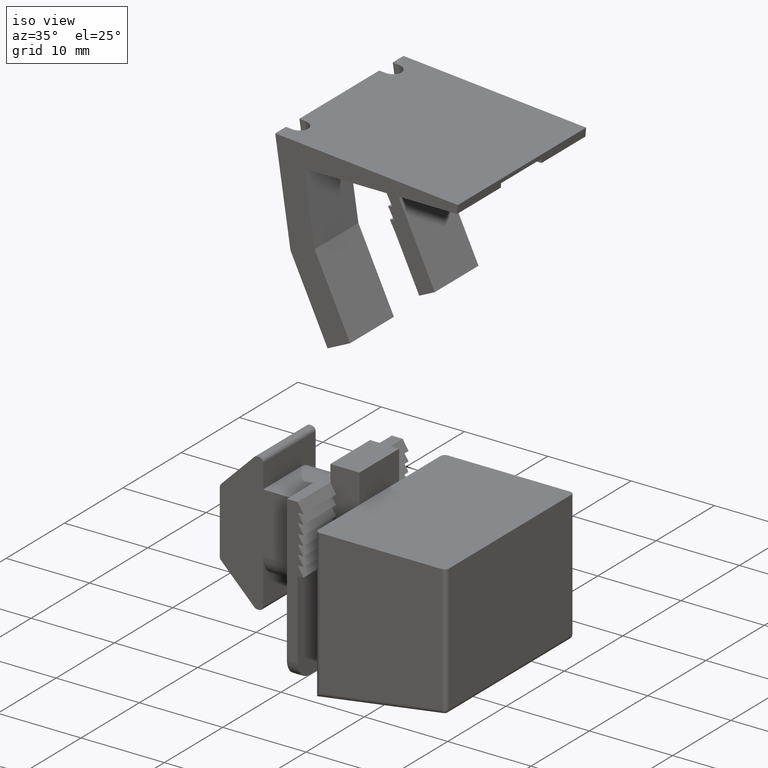
[diagram: clean part render]
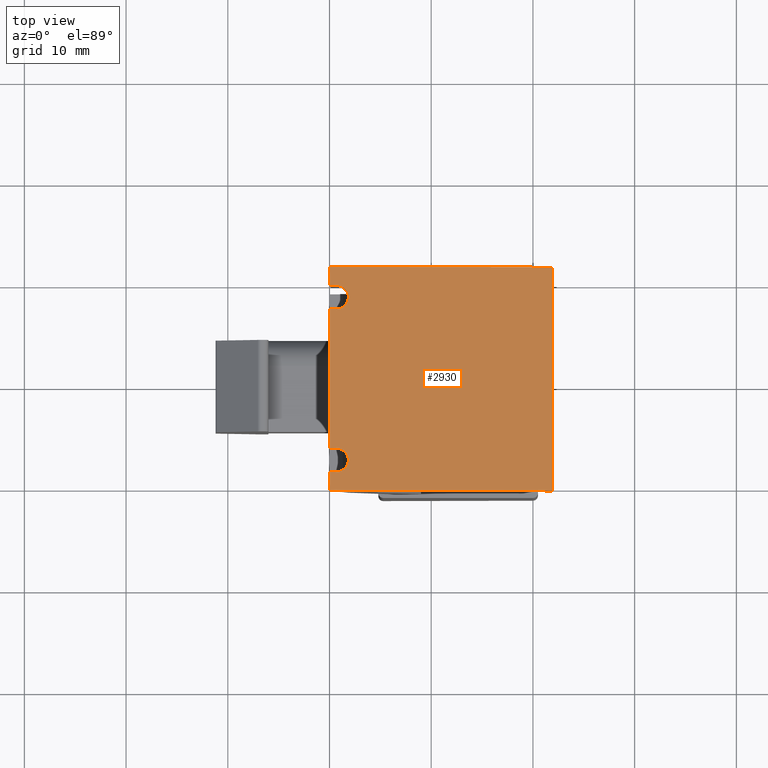
[diagram: tour spotlight — one face highlighted and labeled with its STEP entity id]
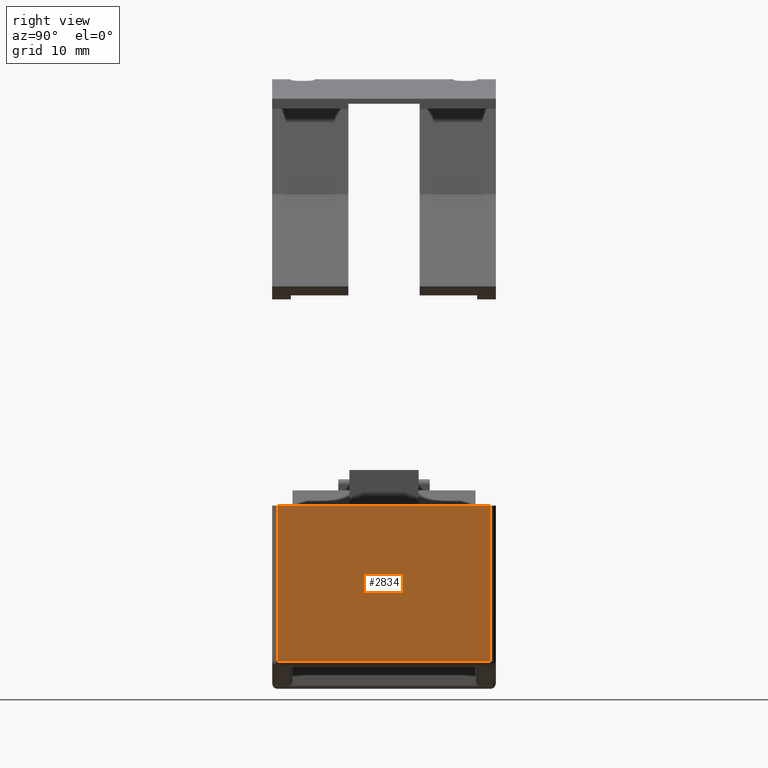
[diagram: tour spotlight — one face highlighted and labeled with its STEP entity id]
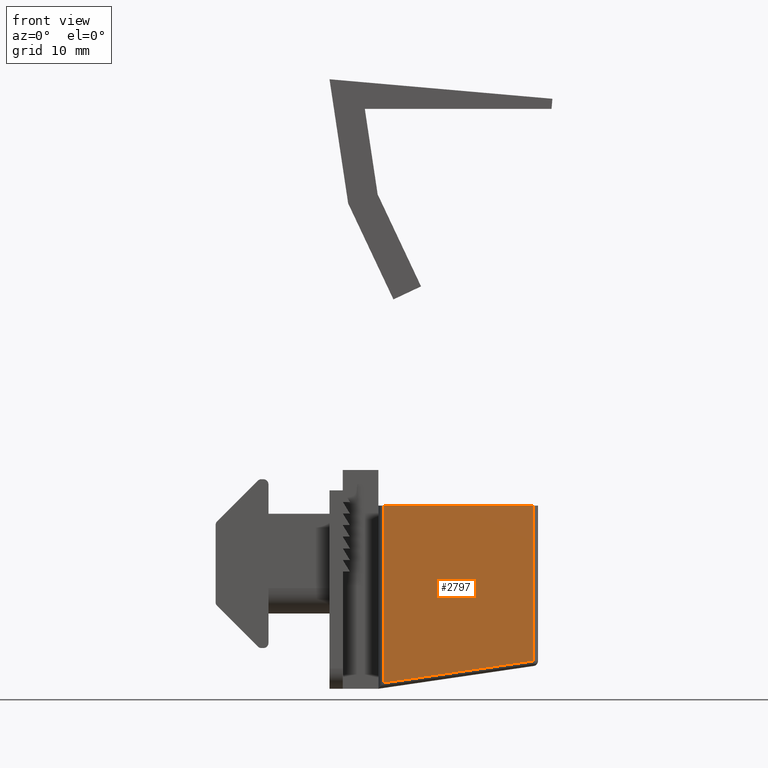
[diagram: tour spotlight — one face highlighted and labeled with its STEP entity id]
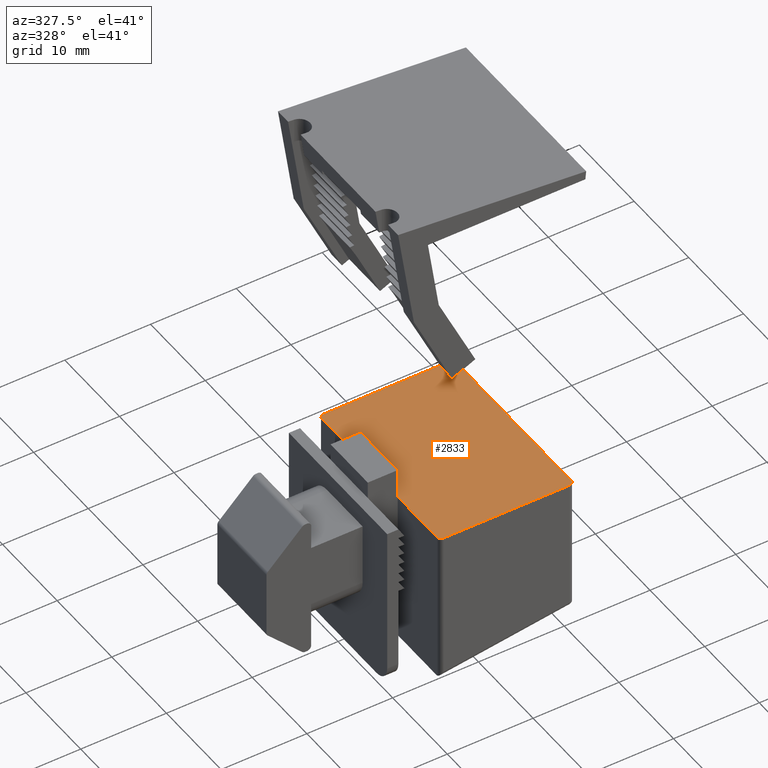
[diagram: tour spotlight — one face highlighted and labeled with its STEP entity id]
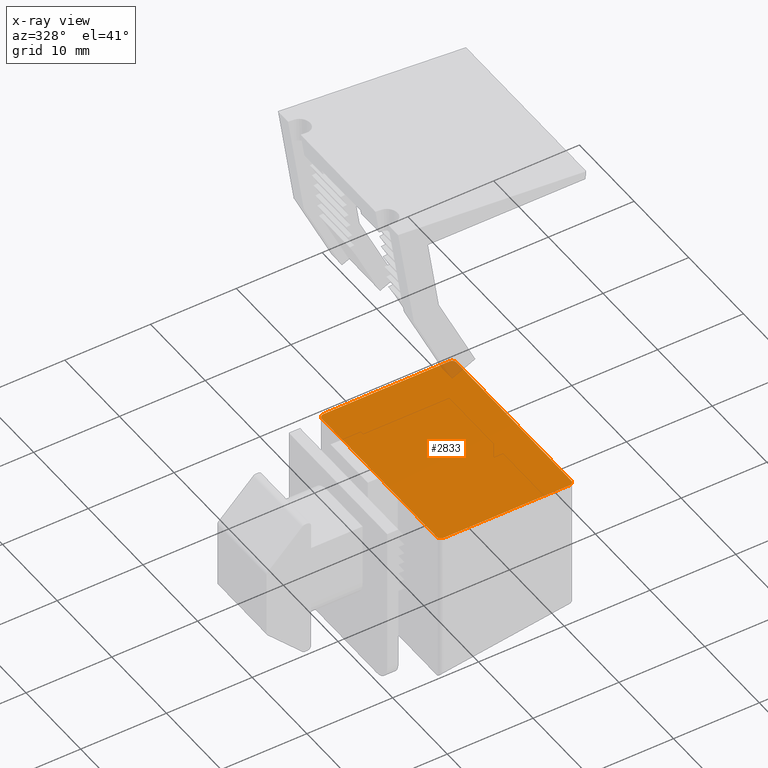
[diagram: x-ray of the same camera — body ghosted, this tour face saturated]
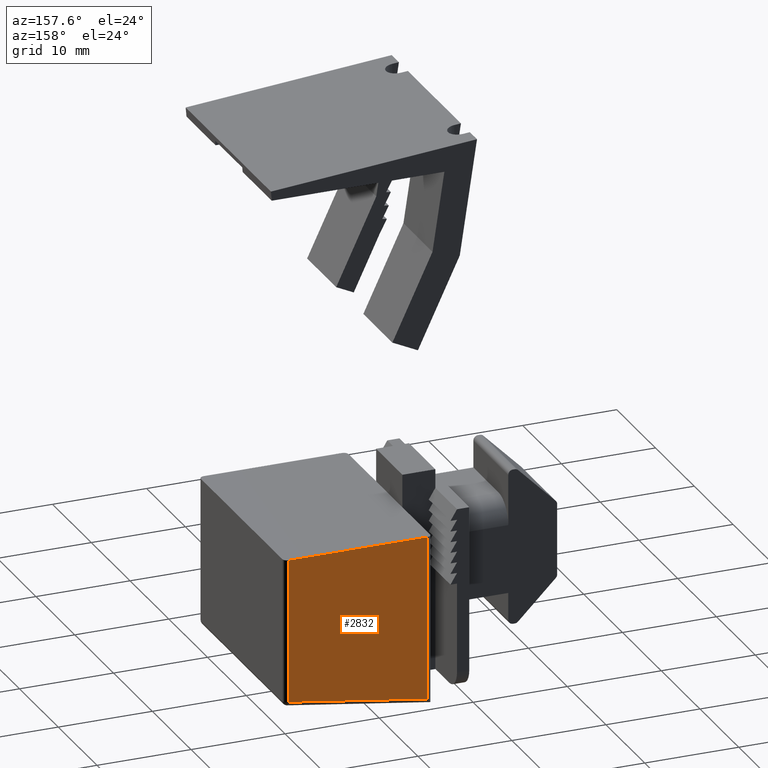
[diagram: tour spotlight — one face highlighted and labeled with its STEP entity id]
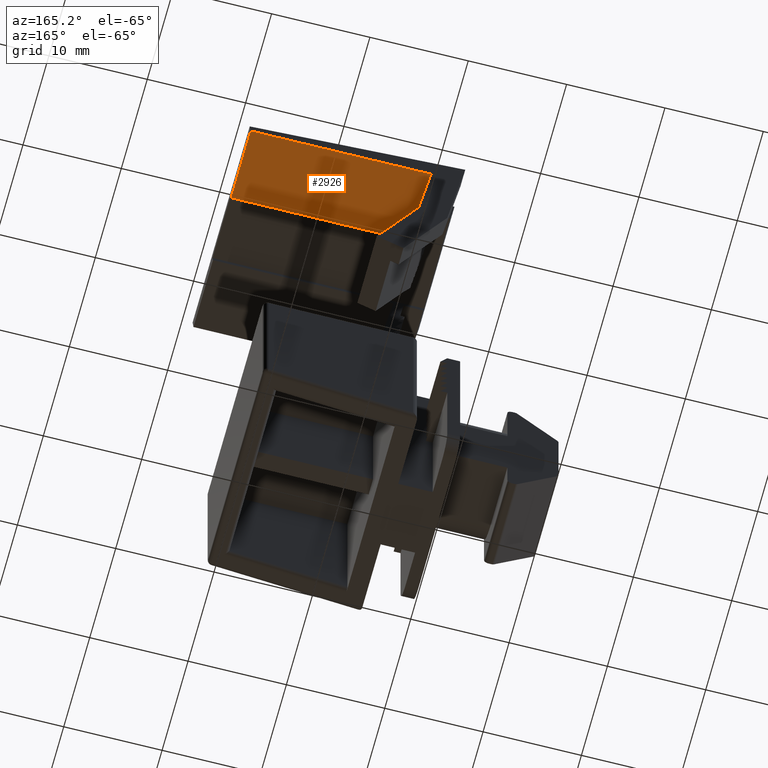
[diagram: tour spotlight — one face highlighted and labeled with its STEP entity id]
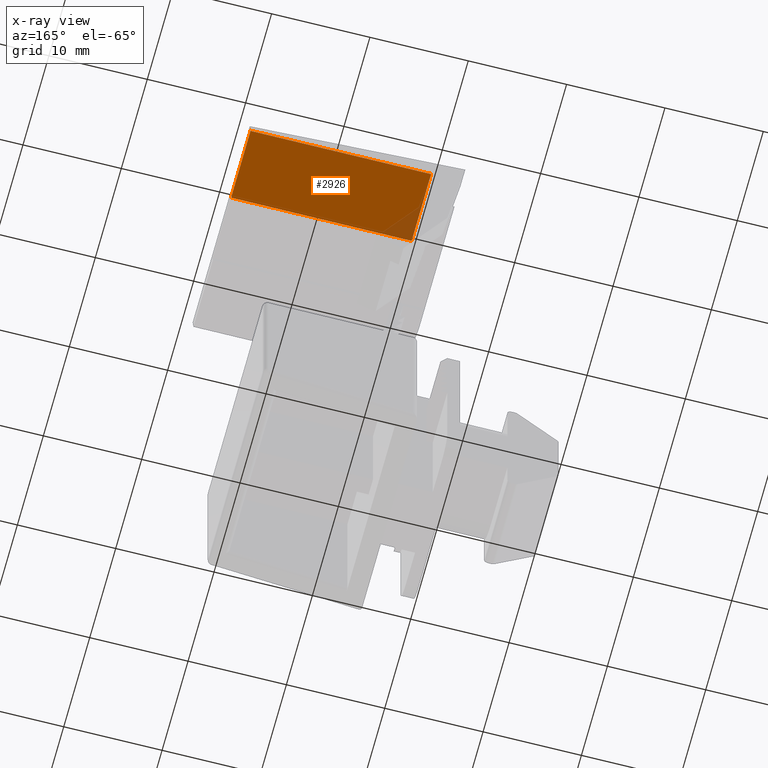
[diagram: x-ray of the same camera — body ghosted, this tour face saturated]
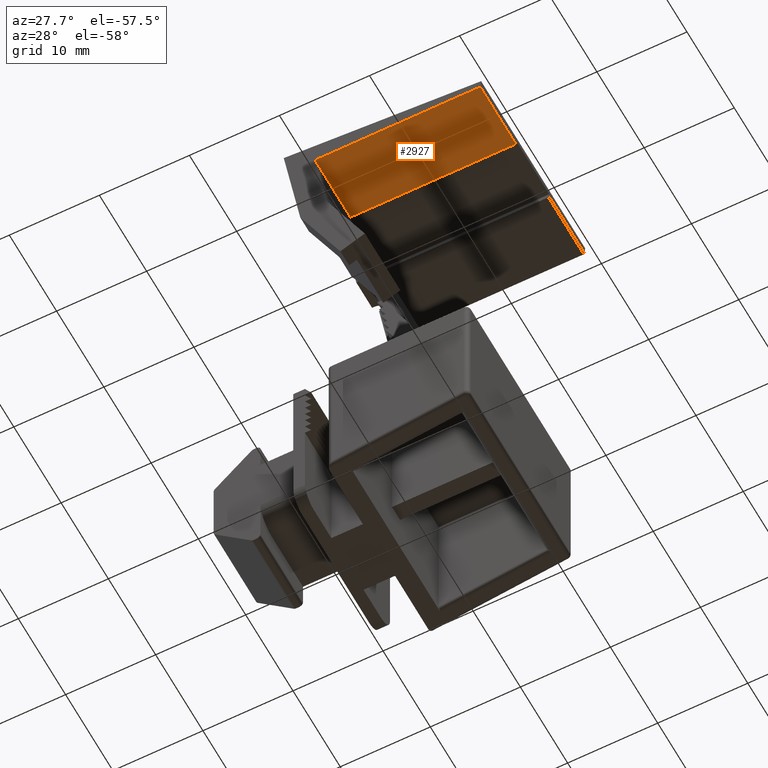
[diagram: tour spotlight — one face highlighted and labeled with its STEP entity id]
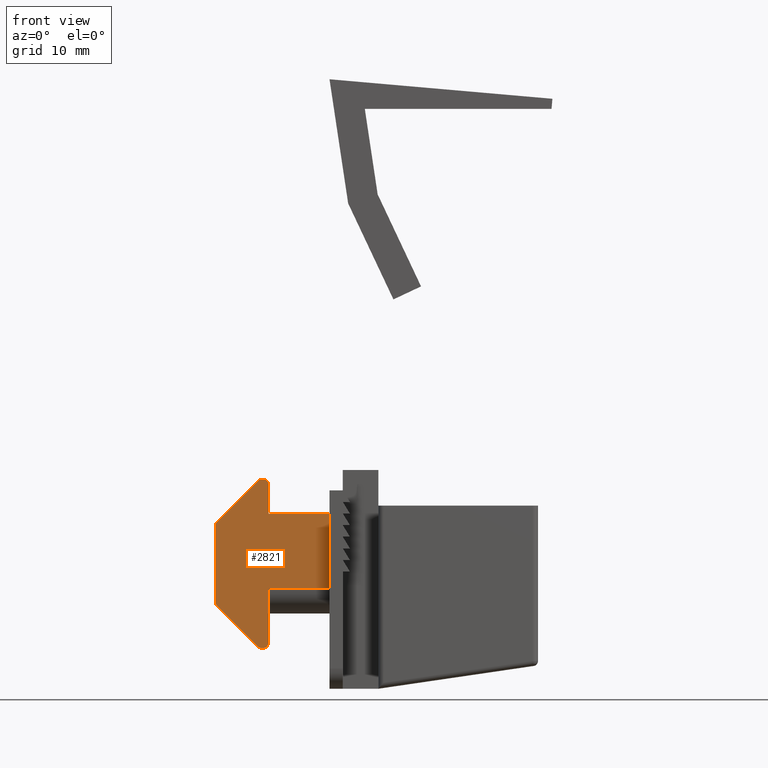
[diagram: tour spotlight — one face highlighted and labeled with its STEP entity id]
A machine part: a face-by-face anatomy tour. The part has 149 B-rep faces; the first image is the clean iso view, then the 8 largest visible faces are spotlighted one at a time (largest first), each with its STEP entity span.

Face 1 — top view, entity #2930. In plain terms, the highlighted planar face has unit normal (0.0872, 0, 0.9962).
Definition (entity closure, byte-faithful):
#154=PLANE('',#3125);
#303=FACE_OUTER_BOUND('',#454,.T.);
#454=EDGE_LOOP('',(#2741,#2742,#2743,#2744,#2745,#2746,#2747,#2748,#2749,
#2750,#2751,#2752));
#496=ELLIPSE('',#3065,1.15439281317485,1.15);
#497=ELLIPSE('',#3068,1.15439281317485,1.15);
#704=LINE('',#4391,#1077);
#709=LINE('',#4411,#1082);
#716=LINE('',#4426,#1089);
#719=LINE('',#4431,#1092);
#806=LINE('',#4603,#1179);
#828=LINE('',#4648,#1201);
#843=LINE('',#4677,#1216);
#867=LINE('',#4726,#1240);
#869=LINE('',#4729,#1242);
#870=LINE('',#4731,#1243);
#1077=VECTOR('',#3596,0.702673886280343);
#1082=VECTOR('',#3615,0.702673886280343);
#1089=VECTOR('',#3626,1.85);
#1092=VECTOR('',#3631,13.7);
#1179=VECTOR('',#3766,0.702673886280343);
#1201=VECTOR('',#3810,0.702673886280343);
#1216=VECTOR('',#3833,1.85);
#1240=VECTOR('',#3879,22.);
#1242=VECTOR('',#3883,22.);
#1243=VECTOR('',#3886,22.);
#1401=VERTEX_POINT('',#4385);
#1403=VERTEX_POINT('',#4389);
#1404=VERTEX_POINT('',#4393);
#1406=VERTEX_POINT('',#4399);
#1407=VERTEX_POINT('',#4400);
#1410=VERTEX_POINT('',#4408);
#1416=VERTEX_POINT('',#4423);
#1417=VERTEX_POINT('',#4425);
#1491=VERTEX_POINT('',#4646);
#1501=VERTEX_POINT('',#4675);
#1514=VERTEX_POINT('',#4723);
#1515=VERTEX_POINT('',#4725);
#1760=EDGE_CURVE('',#1401,#1403,#704,.T.);
#1761=EDGE_CURVE('',#1403,#1404,#496,.T.);
#1764=EDGE_CURVE('',#1406,#1407,#497,.T.);
#1769=EDGE_CURVE('',#1407,#1410,#709,.T.);
#1776=EDGE_CURVE('',#1417,#1416,#716,.T.);
#1779=EDGE_CURVE('',#1410,#1401,#719,.T.);
#1866=EDGE_CURVE('',#1416,#1406,#806,.T.);
#1888=EDGE_CURVE('',#1404,#1491,#828,.T.);
#1903=EDGE_CURVE('',#1491,#1501,#843,.T.);
#1927=EDGE_CURVE('',#1515,#1514,#867,.T.);
#1929=EDGE_CURVE('',#1417,#1514,#869,.T.);
#1930=EDGE_CURVE('',#1515,#1501,#870,.T.);
#2741=ORIENTED_EDGE('',*,*,#1888,.T.);
#2742=ORIENTED_EDGE('',*,*,#1903,.T.);
#2743=ORIENTED_EDGE('',*,*,#1930,.F.);
#2744=ORIENTED_EDGE('',*,*,#1927,.T.);
#2745=ORIENTED_EDGE('',*,*,#1929,.F.);
#2746=ORIENTED_EDGE('',*,*,#1776,.T.);
#2747=ORIENTED_EDGE('',*,*,#1866,.T.);
#2748=ORIENTED_EDGE('',*,*,#1764,.T.);
#2749=ORIENTED_EDGE('',*,*,#1769,.T.);
#2750=ORIENTED_EDGE('',*,*,#1779,.T.);
#2751=ORIENTED_EDGE('',*,*,#1760,.T.);
#2752=ORIENTED_EDGE('',*,*,#1761,.T.);
#2930=ADVANCED_FACE('',(#303),#154,.T.);
#3065=AXIS2_PLACEMENT_3D('',#4394,#3599,#3600);
#3068=AXIS2_PLACEMENT_3D('',#4401,#3606,#3607);
#3125=AXIS2_PLACEMENT_3D('',#4730,#3884,#3885);
#3596=DIRECTION('',(0.996194698091746,-0.0871557427476581,0.));
#3599=DIRECTION('center_axis',(-0.0871557427476581,-0.996194698091746,0.));
#3600=DIRECTION('ref_axis',(-0.996194698091746,0.0871557427476581,0.));
#3606=DIRECTION('center_axis',(-0.0871557427476581,-0.996194698091746,0.));
#3607=DIRECTION('ref_axis',(-0.996194698091746,0.0871557427476581,0.));
#3615=DIRECTION('',(-0.996194698091746,0.0871557427476581,0.));
#3626=DIRECTION('',(0.,0.,1.));
#3631=DIRECTION('',(0.,0.,1.));
#3766=DIRECTION('',(0.996194698091746,-0.0871557427476581,0.));
#3810=DIRECTION('',(-0.996194698091746,0.0871557427476581,0.));
#3833=DIRECTION('',(0.,0.,1.));
#3879=DIRECTION('',(0.,0.,-1.));
#3883=DIRECTION('',(0.996194698091745,-0.0871557427476581,0.));
#3884=DIRECTION('center_axis',(0.0871557427476581,0.996194698091746,0.));
#3885=DIRECTION('ref_axis',(-0.996194698091746,0.0871557427476581,0.));
#3886=DIRECTION('',(-0.996194698091745,0.0871557427476581,0.));
#4385=CARTESIAN_POINT('',(-3.47158707592907,2.91362103854022,6.85));
#4389=CARTESIAN_POINT('',(-2.77158707592907,2.85237897407208,6.85));
#4391=CARTESIAN_POINT('',(7.96038220579591,1.91345332461269,6.85));
#4393=CARTESIAN_POINT('',(-2.77158707592907,2.85237897407208,9.15));
#4394=CARTESIAN_POINT('Origin',(-2.77158707592907,2.85237897407208,8.));
#4399=CARTESIAN_POINT('',(-2.77158707592907,2.85237897407208,-9.15));
#4400=CARTESIAN_POINT('',(-2.77158707592907,2.85237897407208,-6.85));
#4401=CARTESIAN_POINT('Origin',(-2.77158707592907,2.85237897407208,-8.));
#4408=CARTESIAN_POINT('',(-3.47158707592907,2.91362103854022,-6.85));
#4411=CARTESIAN_POINT('',(7.61304084901877,1.9438417557044,-6.85));
#4423=CARTESIAN_POINT('',(-3.47158707592907,2.91362103854022,-9.15));
#4425=CARTESIAN_POINT('',(-3.47158707592907,2.91362103854022,-11.));
#4426=CARTESIAN_POINT('',(-3.47158707592907,2.91362103854022,0.));
#4431=CARTESIAN_POINT('',(-3.47158707592907,2.91362103854022,0.));
#4603=CARTESIAN_POINT('',(7.96038220579591,1.91345332461269,-9.15));
#4646=CARTESIAN_POINT('',(-3.47158707592907,2.91362103854022,9.15));
#4648=CARTESIAN_POINT('',(7.61304084901877,1.9438417557044,9.15));
#4675=CARTESIAN_POINT('',(-3.47158707592907,2.91362103854022,11.));
#4677=CARTESIAN_POINT('',(-3.47158707592907,2.91362103854022,0.));
#4723=CARTESIAN_POINT('',(18.4446962820893,0.996194698091746,-11.));
#4725=CARTESIAN_POINT('',(18.4446962820893,0.996194698091746,11.));
#4726=CARTESIAN_POINT('',(18.4446962820893,0.996194698091746,0.));
#4729=CARTESIAN_POINT('',(-3.47158707592907,2.91362103854022,-11.));
#4730=CARTESIAN_POINT('Origin',(18.4446962820893,0.996194698091746,0.));
#4731=CARTESIAN_POINT('',(-3.47158707592907,2.91362103854022,11.));

Face 2 — right view, entity #2834. In plain terms, the highlighted planar face has unit normal (1, 0, 0).
Definition (entity closure, byte-faithful):
#60=PLANE('',#3024);
#207=FACE_OUTER_BOUND('',#357,.T.);
#357=EDGE_LOOP('',(#2191,#2192,#2193,#2194));
#511=LINE('',#3948,#884);
#515=LINE('',#3963,#888);
#518=LINE('',#3970,#891);
#602=LINE('',#4183,#975);
#884=VECTOR('',#3183,21.);
#888=VECTOR('',#3199,15.26791156036);
#891=VECTOR('',#3206,15.26791156036);
#975=VECTOR('',#3414,21.);
#1261=VERTEX_POINT('',#3938);
#1262=VERTEX_POINT('',#3942);
#1268=VERTEX_POINT('',#3961);
#1269=VERTEX_POINT('',#3966);
#1541=EDGE_CURVE('',#1262,#1261,#511,.T.);
#1548=EDGE_CURVE('',#1268,#1262,#515,.T.);
#1552=EDGE_CURVE('',#1261,#1269,#518,.T.);
#1658=EDGE_CURVE('',#1268,#1269,#602,.T.);
#2191=ORIENTED_EDGE('',*,*,#1548,.F.);
#2192=ORIENTED_EDGE('',*,*,#1658,.T.);
#2193=ORIENTED_EDGE('',*,*,#1552,.F.);
#2194=ORIENTED_EDGE('',*,*,#1541,.F.);
#2834=ADVANCED_FACE('',(#207),#60,.T.);
#3024=AXIS2_PLACEMENT_3D('',#4184,#3415,#3416);
#3183=DIRECTION('',(0.,1.,0.));
#3199=DIRECTION('',(0.,0.,1.));
#3206=DIRECTION('',(0.,0.,-1.));
#3414=DIRECTION('',(0.,1.,0.));
#3415=DIRECTION('center_axis',(1.,0.,0.));
#3416=DIRECTION('ref_axis',(0.,0.,-1.));
#3938=CARTESIAN_POINT('',(20.5,10.5,16.76791156036));
#3942=CARTESIAN_POINT('',(20.5,-10.5,16.76791156036));
#3948=CARTESIAN_POINT('',(20.5,0.,16.76791156036));
#3961=CARTESIAN_POINT('',(20.5,-10.5,1.5));
#3963=CARTESIAN_POINT('',(20.5,-10.5,13.5834471255872));
#3966=CARTESIAN_POINT('',(20.5,10.5,1.5));
#3970=CARTESIAN_POINT('',(20.5,10.5,13.5834471255872));
#4183=CARTESIAN_POINT('',(20.5,0.,1.5));
#4184=CARTESIAN_POINT('Origin',(20.5,0.,17.2));

Face 3 — front view, entity #2797. In plain terms, the highlighted planar face has unit normal (0, -1, 0).
Definition (entity closure, byte-faithful):
#33=PLANE('',#2967);
#170=FACE_OUTER_BOUND('',#320,.T.);
#320=EDGE_LOOP('',(#1993,#1994,#1995,#1996));
#517=LINE('',#3969,#890);
#519=LINE('',#3973,#892);
#520=LINE('',#3977,#893);
#524=LINE('',#3986,#897);
#890=VECTOR('',#3205,15.26791156036);
#892=VECTOR('',#3209,14.8569033101306);
#893=VECTOR('',#3214,17.4214147450733);
#897=VECTOR('',#3224,14.7);
#1260=VERTEX_POINT('',#3936);
#1270=VERTEX_POINT('',#3967);
#1271=VERTEX_POINT('',#3972);
#1272=VERTEX_POINT('',#3976);
#1551=EDGE_CURVE('',#1270,#1260,#517,.T.);
#1553=EDGE_CURVE('',#1260,#1271,#519,.T.);
#1555=EDGE_CURVE('',#1271,#1272,#520,.T.);
#1560=EDGE_CURVE('',#1270,#1272,#524,.T.);
#1993=ORIENTED_EDGE('',*,*,#1555,.F.);
#1994=ORIENTED_EDGE('',*,*,#1553,.F.);
#1995=ORIENTED_EDGE('',*,*,#1551,.F.);
#1996=ORIENTED_EDGE('',*,*,#1560,.T.);
#2797=ADVANCED_FACE('',(#170),#33,.T.);
#2967=AXIS2_PLACEMENT_3D('',#3985,#3222,#3223);
#3205=DIRECTION('',(0.,0.,1.));
#3209=DIRECTION('',(-0.989439030001384,0.,0.144949666815489));
#3214=DIRECTION('',(0.,0.,-1.));
#3222=DIRECTION('center_axis',(0.,1.,0.));
#3223=DIRECTION('ref_axis',(0.,0.,1.));
#3224=DIRECTION('',(-1.,0.,-3.53574211664063E-17));
#3936=CARTESIAN_POINT('',(20.,11.,16.76791156036));
#3967=CARTESIAN_POINT('',(20.,11.,1.5));
#3969=CARTESIAN_POINT('',(20.,11.,13.5834471255872));
#3972=CARTESIAN_POINT('',(5.3,11.,18.9214147450733));
#3973=CARTESIAN_POINT('',(9.11826371996784,11.,18.3620512701736));
#3976=CARTESIAN_POINT('',(5.3,11.,1.5));
#3977=CARTESIAN_POINT('',(5.3,11.,5.73344712558717));
#3985=CARTESIAN_POINT('Origin',(12.3733695377002,11.,9.96689425117433));
#3986=CARTESIAN_POINT('',(20.5,11.,1.5));

Face 4 — auxiliary view, entity #2833. An x-ray twin of the same camera follows (body ghosted, this face saturated) — the face is partly hidden behind the body. In plain terms, the highlighted planar face has unit normal (0, 0, 1).
Definition (entity closure, byte-faithful):
#59=PLANE('',#3023);
#206=FACE_OUTER_BOUND('',#356,.T.);
#356=EDGE_LOOP('',(#2181,#2182,#2183,#2184,#2185,#2186,#2187,#2188,#2189,
#2190));
#464=CIRCLE('',#2955,0.5);
#465=CIRCLE('',#2959,0.5);
#466=CIRCLE('',#2961,0.5);
#467=CIRCLE('',#2965,0.5);
#522=LINE('',#3983,#895);
#524=LINE('',#3986,#897);
#599=LINE('',#4178,#972);
#600=LINE('',#4180,#973);
#601=LINE('',#4182,#974);
#602=LINE('',#4183,#975);
#895=VECTOR('',#3220,7.1);
#897=VECTOR('',#3224,14.7);
#972=VECTOR('',#3407,7.1);
#973=VECTOR('',#3410,14.7);
#974=VECTOR('',#3413,6.8);
#975=VECTOR('',#3414,21.);
#1264=VERTEX_POINT('',#3950);
#1265=VERTEX_POINT('',#3952);
#1267=VERTEX_POINT('',#3960);
#1268=VERTEX_POINT('',#3961);
#1269=VERTEX_POINT('',#3966);
#1270=VERTEX_POINT('',#3967);
#1272=VERTEX_POINT('',#3976);
#1273=VERTEX_POINT('',#3978);
#1274=VERTEX_POINT('',#3982);
#1337=VERTEX_POINT('',#4176);
#1543=EDGE_CURVE('',#1264,#1265,#464,.T.);
#1547=EDGE_CURVE('',#1267,#1268,#465,.T.);
#1550=EDGE_CURVE('',#1269,#1270,#466,.T.);
#1556=EDGE_CURVE('',#1272,#1273,#467,.T.);
#1558=EDGE_CURVE('',#1274,#1273,#522,.T.);
#1560=EDGE_CURVE('',#1270,#1272,#524,.T.);
#1655=EDGE_CURVE('',#1264,#1337,#599,.T.);
#1656=EDGE_CURVE('',#1265,#1267,#600,.T.);
#1657=EDGE_CURVE('',#1274,#1337,#601,.T.);
#1658=EDGE_CURVE('',#1268,#1269,#602,.T.);
#2181=ORIENTED_EDGE('',*,*,#1543,.F.);
#2182=ORIENTED_EDGE('',*,*,#1655,.T.);
#2183=ORIENTED_EDGE('',*,*,#1657,.F.);
#2184=ORIENTED_EDGE('',*,*,#1558,.T.);
#2185=ORIENTED_EDGE('',*,*,#1556,.F.);
#2186=ORIENTED_EDGE('',*,*,#1560,.F.);
#2187=ORIENTED_EDGE('',*,*,#1550,.F.);
#2188=ORIENTED_EDGE('',*,*,#1658,.F.);
#2189=ORIENTED_EDGE('',*,*,#1547,.F.);
#2190=ORIENTED_EDGE('',*,*,#1656,.F.);
#2833=ADVANCED_FACE('',(#206),#59,.T.);
#2955=AXIS2_PLACEMENT_3D('',#3953,#3187,#3188);
#2959=AXIS2_PLACEMENT_3D('',#3962,#3197,#3198);
#2961=AXIS2_PLACEMENT_3D('',#3968,#3203,#3204);
#2965=AXIS2_PLACEMENT_3D('',#3979,#3215,#3216);
#3023=AXIS2_PLACEMENT_3D('',#4181,#3411,#3412);
#3187=DIRECTION('center_axis',(-3.53574211664063E-17,0.,1.));
#3188=DIRECTION('ref_axis',(-0.707106781186546,-0.707106781186549,0.));
#3197=DIRECTION('center_axis',(-3.53574211664063E-17,0.,1.));
#3198=DIRECTION('ref_axis',(0.707106781186548,-0.707106781186548,0.));
#3203=DIRECTION('center_axis',(-3.53574211664063E-17,0.,1.));
#3204=DIRECTION('ref_axis',(0.707106781186548,0.707106781186548,0.));
#3215=DIRECTION('center_axis',(-3.53574211664063E-17,0.,1.));
#3216=DIRECTION('ref_axis',(-0.707106781186546,0.707106781186549,0.));
#3220=DIRECTION('',(0.,1.,0.));
#3224=DIRECTION('',(-1.,0.,-3.53574211664063E-17));
#3407=DIRECTION('',(0.,1.,0.));
#3410=DIRECTION('',(1.,0.,3.53574211664063E-17));
#3411=DIRECTION('center_axis',(3.53574211664063E-17,0.,-1.));
#3412=DIRECTION('ref_axis',(-1.,0.,-4.44089209850063E-17));
#3413=DIRECTION('',(0.,-1.,0.));
#3414=DIRECTION('',(0.,1.,0.));
#3950=CARTESIAN_POINT('',(4.8,-10.5,1.5));
#3952=CARTESIAN_POINT('',(5.3,-11.,1.5));
#3953=CARTESIAN_POINT('Origin',(5.3,-10.5,1.5));
#3960=CARTESIAN_POINT('',(20.,-11.,1.5));
#3961=CARTESIAN_POINT('',(20.5,-10.5,1.5));
#3962=CARTESIAN_POINT('Origin',(20.,-10.5,1.5));
#3966=CARTESIAN_POINT('',(20.5,10.5,1.5));
#3967=CARTESIAN_POINT('',(20.,11.,1.5));
#3968=CARTESIAN_POINT('Origin',(20.,10.5,1.5));
#3976=CARTESIAN_POINT('',(5.3,11.,1.5));
#3978=CARTESIAN_POINT('',(4.8,10.5,1.5));
#3979=CARTESIAN_POINT('Origin',(5.3,10.5,1.5));
#3982=CARTESIAN_POINT('',(4.8,3.4,1.5));
#3983=CARTESIAN_POINT('',(4.8,0.,1.5));
#3986=CARTESIAN_POINT('',(20.5,11.,1.5));
#4176=CARTESIAN_POINT('',(4.8,-3.4,1.5));
#4178=CARTESIAN_POINT('',(4.8,0.,1.5));
#4180=CARTESIAN_POINT('',(20.5,-11.,1.5));
#4181=CARTESIAN_POINT('Origin',(20.5,0.,1.5));
#4182=CARTESIAN_POINT('',(4.8,0.,1.5));
#4183=CARTESIAN_POINT('',(20.5,0.,1.5));

Face 5 — auxiliary view, entity #2832. In plain terms, the highlighted planar face has unit normal (0, 1, 0).
Definition (entity closure, byte-faithful):
#58=PLANE('',#3022);
#205=FACE_OUTER_BOUND('',#355,.T.);
#355=EDGE_LOOP('',(#2177,#2178,#2179,#2180));
#513=LINE('',#3955,#886);
#514=LINE('',#3958,#887);
#516=LINE('',#3964,#889);
#600=LINE('',#4180,#973);
#886=VECTOR('',#3189,17.4214147450733);
#887=VECTOR('',#3194,14.8569033101306);
#889=VECTOR('',#3200,15.26791156036);
#973=VECTOR('',#3410,14.7);
#1263=VERTEX_POINT('',#3943);
#1265=VERTEX_POINT('',#3952);
#1266=VERTEX_POINT('',#3954);
#1267=VERTEX_POINT('',#3960);
#1544=EDGE_CURVE('',#1265,#1266,#513,.T.);
#1546=EDGE_CURVE('',#1266,#1263,#514,.T.);
#1549=EDGE_CURVE('',#1263,#1267,#516,.T.);
#1656=EDGE_CURVE('',#1265,#1267,#600,.T.);
#2177=ORIENTED_EDGE('',*,*,#1544,.F.);
#2178=ORIENTED_EDGE('',*,*,#1656,.T.);
#2179=ORIENTED_EDGE('',*,*,#1549,.F.);
#2180=ORIENTED_EDGE('',*,*,#1546,.F.);
#2832=ADVANCED_FACE('',(#205),#58,.T.);
#3022=AXIS2_PLACEMENT_3D('',#4179,#3408,#3409);
#3189=DIRECTION('',(0.,0.,1.));
#3194=DIRECTION('',(0.989439030001384,0.,-0.144949666815489));
#3200=DIRECTION('',(0.,0.,-1.));
#3408=DIRECTION('center_axis',(0.,-1.,0.));
#3409=DIRECTION('ref_axis',(0.,0.,-1.));
#3410=DIRECTION('',(1.,0.,3.53574211664063E-17));
#3943=CARTESIAN_POINT('',(20.,-11.,16.76791156036));
#3952=CARTESIAN_POINT('',(5.3,-11.,1.5));
#3954=CARTESIAN_POINT('',(5.3,-11.,18.9214147450733));
#3955=CARTESIAN_POINT('',(5.3,-11.,5.73344712558717));
#3958=CARTESIAN_POINT('',(9.11826371996784,-11.,18.3620512701736));
#3960=CARTESIAN_POINT('',(20.,-11.,1.5));
#3964=CARTESIAN_POINT('',(20.,-11.,13.5834471255872));
#4179=CARTESIAN_POINT('Origin',(12.3733695377002,-11.,9.96689425117433));
#4180=CARTESIAN_POINT('',(20.5,-11.,1.5));

Face 6 — auxiliary view, entity #2926. An x-ray twin of the same camera follows (body ghosted, this face saturated) — the face is partly hidden behind the body. In plain terms, the highlighted planar face has unit normal (0, -0, -1).
Definition (entity closure, byte-faithful):
#150=PLANE('',#3121);
#299=FACE_OUTER_BOUND('',#450,.T.);
#450=EDGE_LOOP('',(#2717,#2718,#2719,#2720));
#846=LINE('',#4684,#1219);
#859=LINE('',#4709,#1232);
#862=LINE('',#4716,#1235);
#863=LINE('',#4717,#1236);
#1219=VECTOR('',#3838,18.3575405393417);
#1232=VECTOR('',#3863,7.5);
#1235=VECTOR('',#3870,18.3575405393417);
#1236=VECTOR('',#3871,7.5);
#1503=VERTEX_POINT('',#4681);
#1504=VERTEX_POINT('',#4683);
#1510=VERTEX_POINT('',#4707);
#1512=VERTEX_POINT('',#4715);
#1906=EDGE_CURVE('',#1504,#1503,#846,.T.);
#1919=EDGE_CURVE('',#1503,#1510,#859,.T.);
#1922=EDGE_CURVE('',#1512,#1510,#862,.T.);
#1923=EDGE_CURVE('',#1504,#1512,#863,.T.);
#2717=ORIENTED_EDGE('',*,*,#1906,.T.);
#2718=ORIENTED_EDGE('',*,*,#1919,.T.);
#2719=ORIENTED_EDGE('',*,*,#1922,.F.);
#2720=ORIENTED_EDGE('',*,*,#1923,.F.);
#2926=ADVANCED_FACE('',(#299),#150,.T.);
#3121=AXIS2_PLACEMENT_3D('',#4714,#3868,#3869);
#3838=DIRECTION('',(-1.,0.,0.));
#3863=DIRECTION('',(0.,0.,-1.));
#3868=DIRECTION('center_axis',(0.,-1.,0.));
#3869=DIRECTION('ref_axis',(1.,0.,0.));
#3870=DIRECTION('',(-1.,0.,0.));
#3871=DIRECTION('',(0.,0.,-1.));
#4681=CARTESIAN_POINT('',(0.,0.,-3.5));
#4683=CARTESIAN_POINT('',(18.3575405393417,0.,-3.5));
#4684=CARTESIAN_POINT('',(2.29113701020299,0.,-3.5));
#4707=CARTESIAN_POINT('',(0.,0.,-11.));
#4709=CARTESIAN_POINT('',(0.,0.,0.));
#4714=CARTESIAN_POINT('Origin',(0.,0.,0.));
#4715=CARTESIAN_POINT('',(18.3575405393417,0.,-11.));
#4716=CARTESIAN_POINT('',(18.3575405393417,0.,-11.));
#4717=CARTESIAN_POINT('',(18.3575405393417,0.,0.));

Face 7 — auxiliary view, entity #2927. In plain terms, the highlighted planar face has unit normal (0, -0, -1).
Definition (entity closure, byte-faithful):
#151=PLANE('',#3122);
#300=FACE_OUTER_BOUND('',#451,.T.);
#451=EDGE_LOOP('',(#2721,#2722,#2723,#2724));
#837=LINE('',#4666,#1210);
#860=LINE('',#4712,#1233);
#864=LINE('',#4720,#1237);
#865=LINE('',#4721,#1238);
#1210=VECTOR('',#3825,18.3575405393417);
#1233=VECTOR('',#3866,7.5);
#1237=VECTOR('',#3874,7.5);
#1238=VECTOR('',#3875,18.3575405393417);
#1496=VERTEX_POINT('',#4663);
#1497=VERTEX_POINT('',#4665);
#1511=VERTEX_POINT('',#4711);
#1513=VERTEX_POINT('',#4719);
#1897=EDGE_CURVE('',#1497,#1496,#837,.T.);
#1920=EDGE_CURVE('',#1511,#1497,#860,.T.);
#1924=EDGE_CURVE('',#1513,#1496,#864,.T.);
#1925=EDGE_CURVE('',#1511,#1513,#865,.T.);
#2721=ORIENTED_EDGE('',*,*,#1897,.T.);
#2722=ORIENTED_EDGE('',*,*,#1924,.F.);
#2723=ORIENTED_EDGE('',*,*,#1925,.F.);
#2724=ORIENTED_EDGE('',*,*,#1920,.T.);
#2927=ADVANCED_FACE('',(#300),#151,.T.);
#3122=AXIS2_PLACEMENT_3D('',#4718,#3872,#3873);
#3825=DIRECTION('',(1.,0.,0.));
#3866=DIRECTION('',(0.,0.,-1.));
#3872=DIRECTION('center_axis',(0.,-1.,0.));
#3873=DIRECTION('ref_axis',(1.,0.,0.));
#3874=DIRECTION('',(0.,0.,-1.));
#3875=DIRECTION('',(1.,0.,0.));
#4663=CARTESIAN_POINT('',(18.3575405393417,0.,3.5));
#4665=CARTESIAN_POINT('',(0.,0.,3.5));
#4666=CARTESIAN_POINT('',(2.29113701020299,0.,3.5));
#4711=CARTESIAN_POINT('',(0.,0.,11.));
#4712=CARTESIAN_POINT('',(0.,0.,0.));
#4718=CARTESIAN_POINT('Origin',(0.,0.,0.));
#4719=CARTESIAN_POINT('',(18.3575405393417,0.,11.));
#4720=CARTESIAN_POINT('',(18.3575405393417,0.,0.));
#4721=CARTESIAN_POINT('',(18.3575405393417,0.,11.));

Face 8 — front view, entity #2821. In plain terms, the highlighted planar face has unit normal (0, -1, 0).
Definition (entity closure, byte-faithful):
#47=PLANE('',#3011);
#194=FACE_OUTER_BOUND('',#344,.T.);
#344=EDGE_LOOP('',(#2109,#2110,#2111,#2112,#2113,#2114,#2115,#2116,#2117,
#2118,#2119,#2120,#2121,#2122,#2123,#2124));
#477=CIRCLE('',#2987,0.5);
#483=CIRCLE('',#2996,0.5);
#484=CIRCLE('',#2999,0.5);
#485=CIRCLE('',#3002,0.5);
#486=CIRCLE('',#3005,0.5);
#487=CIRCLE('',#3008,0.5);
#541=LINE('',#4033,#914);
#548=LINE('',#4053,#921);
#554=LINE('',#4069,#927);
#564=LINE('',#4099,#937);
#567=LINE('',#4107,#940);
#570=LINE('',#4115,#943);
#573=LINE('',#4123,#946);
#575=LINE('',#4129,#948);
#576=LINE('',#4131,#949);
#577=LINE('',#4133,#950);
#914=VECTOR('',#3265,6.);
#921=VECTOR('',#3282,6.);
#927=VECTOR('',#3296,0.192893218813451);
#937=VECTOR('',#3324,5.66690475583121);
#940=VECTOR('',#3333,7.58578643762691);
#943=VECTOR('',#3342,5.66690475583121);
#946=VECTOR('',#3351,0.192893218813452);
#948=VECTOR('',#3359,5.4);
#949=VECTOR('',#3362,2.9);
#950=VECTOR('',#3365,7.3);
#1289=VERTEX_POINT('',#4026);
#1292=VERTEX_POINT('',#4031);
#1299=VERTEX_POINT('',#4050);
#1300=VERTEX_POINT('',#4052);
#1303=VERTEX_POINT('',#4059);
#1304=VERTEX_POINT('',#4061);
#1306=VERTEX_POINT('',#4067);
#1316=VERTEX_POINT('',#4093);
#1317=VERTEX_POINT('',#4097);
#1318=VERTEX_POINT('',#4101);
#1319=VERTEX_POINT('',#4105);
#1320=VERTEX_POINT('',#4109);
#1321=VERTEX_POINT('',#4113);
#1322=VERTEX_POINT('',#4117);
#1323=VERTEX_POINT('',#4121);
#1324=VERTEX_POINT('',#4125);
#1583=EDGE_CURVE('',#1292,#1289,#541,.T.);
#1592=EDGE_CURVE('',#1300,#1299,#548,.T.);
#1596=EDGE_CURVE('',#1303,#1304,#477,.T.);
#1600=EDGE_CURVE('',#1303,#1306,#554,.T.);
#1614=EDGE_CURVE('',#1316,#1306,#483,.T.);
#1616=EDGE_CURVE('',#1316,#1317,#564,.T.);
#1618=EDGE_CURVE('',#1318,#1317,#484,.T.);
#1620=EDGE_CURVE('',#1318,#1319,#567,.T.);
#1622=EDGE_CURVE('',#1320,#1319,#485,.T.);
#1624=EDGE_CURVE('',#1320,#1321,#570,.T.);
#1626=EDGE_CURVE('',#1322,#1321,#486,.T.);
#1628=EDGE_CURVE('',#1322,#1323,#573,.T.);
#1630=EDGE_CURVE('',#1324,#1323,#487,.T.);
#1631=EDGE_CURVE('',#1324,#1289,#575,.T.);
#1632=EDGE_CURVE('',#1299,#1304,#576,.T.);
#1633=EDGE_CURVE('',#1300,#1292,#577,.T.);
#2109=ORIENTED_EDGE('',*,*,#1583,.F.);
#2110=ORIENTED_EDGE('',*,*,#1633,.F.);
#2111=ORIENTED_EDGE('',*,*,#1592,.T.);
#2112=ORIENTED_EDGE('',*,*,#1632,.T.);
#2113=ORIENTED_EDGE('',*,*,#1596,.F.);
#2114=ORIENTED_EDGE('',*,*,#1600,.T.);
#2115=ORIENTED_EDGE('',*,*,#1614,.F.);
#2116=ORIENTED_EDGE('',*,*,#1616,.T.);
#2117=ORIENTED_EDGE('',*,*,#1618,.F.);
#2118=ORIENTED_EDGE('',*,*,#1620,.T.);
#2119=ORIENTED_EDGE('',*,*,#1622,.F.);
#2120=ORIENTED_EDGE('',*,*,#1624,.T.);
#2121=ORIENTED_EDGE('',*,*,#1626,.F.);
#2122=ORIENTED_EDGE('',*,*,#1628,.T.);
#2123=ORIENTED_EDGE('',*,*,#1630,.F.);
#2124=ORIENTED_EDGE('',*,*,#1631,.T.);
#2821=ADVANCED_FACE('',(#194),#47,.T.);
#2987=AXIS2_PLACEMENT_3D('',#4062,#3289,#3290);
#2996=AXIS2_PLACEMENT_3D('',#4095,#3319,#3320);
#2999=AXIS2_PLACEMENT_3D('',#4103,#3328,#3329);
#3002=AXIS2_PLACEMENT_3D('',#4111,#3337,#3338);
#3005=AXIS2_PLACEMENT_3D('',#4119,#3346,#3347);
#3008=AXIS2_PLACEMENT_3D('',#4127,#3355,#3356);
#3011=AXIS2_PLACEMENT_3D('',#4132,#3363,#3364);
#3265=DIRECTION('',(-1.,0.,0.));
#3282=DIRECTION('',(-1.,0.,0.));
#3289=DIRECTION('center_axis',(0.,-1.,0.));
#3290=DIRECTION('ref_axis',(0.707106781186548,0.,-0.707106781186547));
#3296=DIRECTION('',(-1.,0.,6.16790569236199E-16));
#3319=DIRECTION('center_axis',(0.,-1.,0.));
#3320=DIRECTION('ref_axis',(-0.382683432365089,0.,-0.923879532511287));
#3324=DIRECTION('',(-0.707106781186547,0.,0.707106781186547));
#3328=DIRECTION('center_axis',(0.,-1.,0.));
#3329=DIRECTION('ref_axis',(-0.923879532511286,0.,-0.382683432365091));
#3333=DIRECTION('',(0.,0.,1.));
#3337=DIRECTION('center_axis',(0.,-1.,0.));
#3338=DIRECTION('ref_axis',(-0.923879532511287,0.,0.38268343236509));
#3342=DIRECTION('',(0.707106781186547,0.,0.707106781186547));
#3346=DIRECTION('center_axis',(0.,-1.,0.));
#3347=DIRECTION('ref_axis',(-0.38268343236509,0.,0.923879532511287));
#3351=DIRECTION('',(1.,0.,0.));
#3355=DIRECTION('center_axis',(0.,-1.,0.));
#3356=DIRECTION('ref_axis',(0.707106781186549,0.,0.707106781186546));
#3359=DIRECTION('',(0.,0.,-1.));
#3362=DIRECTION('',(0.,0.,-1.));
#3363=DIRECTION('center_axis',(0.,1.,0.));
#3364=DIRECTION('ref_axis',(0.,0.,1.));
#3365=DIRECTION('',(0.,0.,1.));
#4026=CARTESIAN_POINT('',(-6.,4.5,9.6));
#4031=CARTESIAN_POINT('',(0.,4.5,9.6));
#4033=CARTESIAN_POINT('',(-5.84874899454171,4.5,9.6));
#4050=CARTESIAN_POINT('',(-6.,4.5,2.3));
#4052=CARTESIAN_POINT('',(0.,4.5,2.3));
#4053=CARTESIAN_POINT('',(-6.,4.5,2.3));
#4059=CARTESIAN_POINT('',(-6.5,4.5,-1.1));
#4061=CARTESIAN_POINT('',(-6.,4.5,-0.6));
#4062=CARTESIAN_POINT('Origin',(-6.5,4.5,-0.6));
#4067=CARTESIAN_POINT('',(-6.69289321881345,4.5,-1.1));
#4069=CARTESIAN_POINT('',(-6.9,4.5,-1.1));
#4093=CARTESIAN_POINT('',(-7.04644660940673,4.5,-0.953553390593273));
#4095=CARTESIAN_POINT('Origin',(-6.69289321881345,4.5,-0.6));
#4097=CARTESIAN_POINT('',(-11.0535533905933,4.5,3.05355339059327));
#4099=CARTESIAN_POINT('',(-11.2,4.5,3.2));
#4101=CARTESIAN_POINT('',(-11.2,4.5,3.40710678118655));
#4103=CARTESIAN_POINT('Origin',(-10.7,4.5,3.40710678118655));
#4105=CARTESIAN_POINT('',(-11.2,4.5,10.9928932188135));
#4107=CARTESIAN_POINT('',(-11.2,4.5,11.2));
#4109=CARTESIAN_POINT('',(-11.0535533905933,4.5,11.3464466094067));
#4111=CARTESIAN_POINT('Origin',(-10.7,4.5,10.9928932188135));
#4113=CARTESIAN_POINT('',(-7.04644660940673,4.5,15.3535533905933));
#4115=CARTESIAN_POINT('',(-6.9,4.5,15.5));
#4117=CARTESIAN_POINT('',(-6.69289321881345,4.5,15.5));
#4119=CARTESIAN_POINT('Origin',(-6.69289321881345,4.5,15.));
#4121=CARTESIAN_POINT('',(-6.5,4.5,15.5));
#4123=CARTESIAN_POINT('',(-6.,4.5,15.5));
#4125=CARTESIAN_POINT('',(-6.,4.5,15.));
#4127=CARTESIAN_POINT('Origin',(-6.5,4.5,15.));
#4129=CARTESIAN_POINT('',(-6.,4.5,12.1));
#4131=CARTESIAN_POINT('',(-6.,4.5,-1.1));
#4132=CARTESIAN_POINT('Origin',(-5.69749798908342,4.5,7.2));
#4133=CARTESIAN_POINT('',(0.,4.5,3.6));